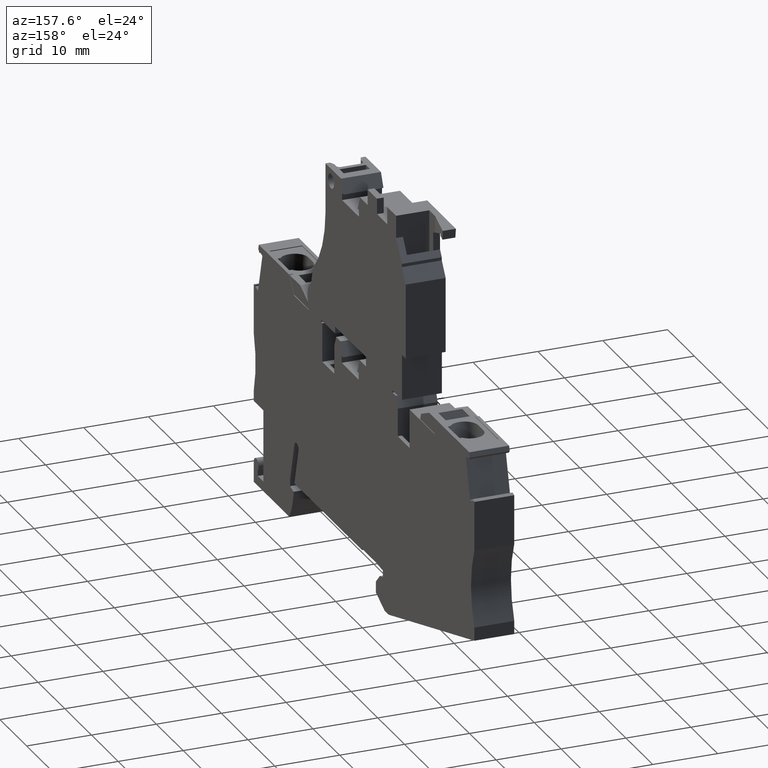
[diagram: clean part render]
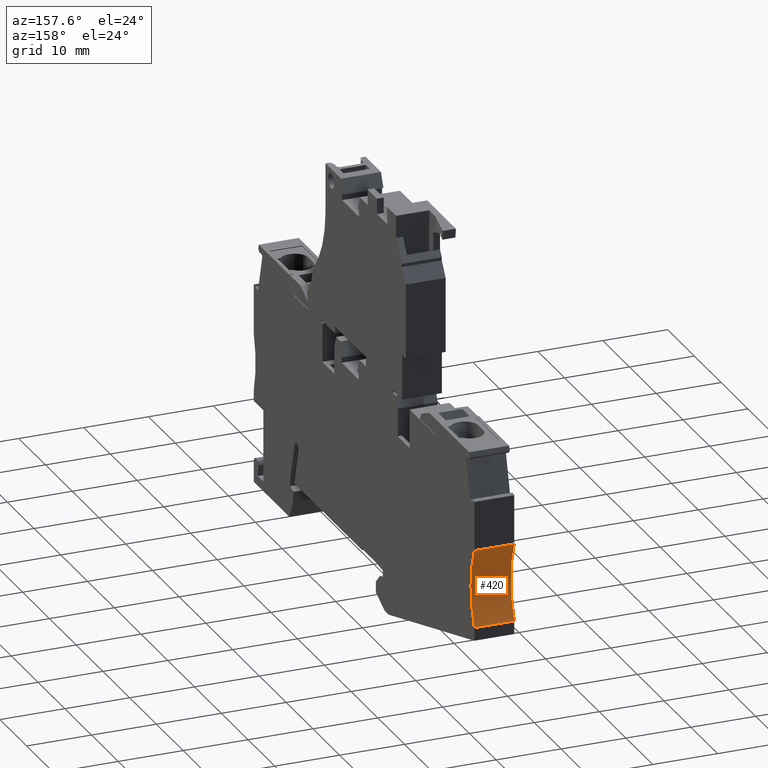
[diagram: same view with one face highlighted and labeled with its STEP entity id]
A machine part, auxiliary view. The second image highlights one B-rep face of the part: STEP entity #420.
In plain terms, the highlighted cylindrical surface (partial cylindrical patch) has radius 15 mm, axis along (1, 0, 0).
Its self-contained STEP definition (entity closure, byte-faithful):
#10=CARTESIAN_POINT('',(99.2466863026297,23.3009706322769,
2.31548633044056E-11));
#20=DIRECTION('',(1.30635874114574E-13,1.60400341780714E-14,1.));
#30=DIRECTION('',(0.992546151641338,0.121869343405017,
-1.31616922552198E-13));
#40=AXIS2_PLACEMENT_3D('',#10,#20,#30);
#50=CYLINDRICAL_SURFACE('',#40,15.);
#60=CARTESIAN_POINT('',(84.8702166293312,27.5808210657417,
-6.02311354609829E-12));
#70=DIRECTION('',(-3.00945698545541E-14,-3.71491183819992E-15,1.));
#80=VECTOR('',#70,1.);
#90=LINE('',#60,#80);
#100=CARTESIAN_POINT('',(84.8702166293315,27.5808210657407,
-5.6500000000433));
#110=VERTEX_POINT('',#100);
#120=CARTESIAN_POINT('',(84.8702166293314,27.5808210657404,
0.499999999956705));
#130=VERTEX_POINT('',#120);
#140=EDGE_CURVE('',#110,#130,#90,.T.);
#150=ORIENTED_EDGE('',*,*,#140,.T.);
#160=CARTESIAN_POINT('',(99.246686302629,23.3009706322768,
-5.6500000000451));
#170=DIRECTION('',(1.30635874114574E-13,1.60400341780714E-14,1.));
#180=DIRECTION('',(0.992546151641338,0.121869343405017,
-1.31616922552198E-13));
#190=AXIS2_PLACEMENT_3D('',#160,#170,#180);
#200=CIRCLE('',#190,15.);
#210=CARTESIAN_POINT('',(86.3326487494333,15.670267252204,
-5.6500000000433));
#220=VERTEX_POINT('',#210);
#230=EDGE_CURVE('',#110,#220,#200,.T.);
#240=ORIENTED_EDGE('',*,*,#230,.F.);
#250=CARTESIAN_POINT('',(86.3326487494341,15.6702672522041,
2.49643208861205E-11));
#260=DIRECTION('',(1.30635874114574E-13,1.60400341780714E-14,1.));
#270=VECTOR('',#260,1.);
#280=LINE('',#250,#270);
#290=CARTESIAN_POINT('',(86.3326487494341,15.6702672522041,
0.499999999956705));
#300=VERTEX_POINT('',#290);
#310=EDGE_CURVE('',#220,#300,#280,.T.);
#320=ORIENTED_EDGE('',*,*,#310,.F.);
#330=CARTESIAN_POINT('',(99.2466863026298,23.3009706322769,
0.499999999954896));
#340=DIRECTION('',(1.30635874114574E-13,1.60400341780714E-14,1.));
#350=DIRECTION('',(0.992546151641338,0.121869343405017,
-1.31616922552198E-13));
#360=AXIS2_PLACEMENT_3D('',#330,#340,#350);
#370=CIRCLE('',#360,15.);
#380=EDGE_CURVE('',#130,#300,#370,.T.);
#390=ORIENTED_EDGE('',*,*,#380,.T.);
#400=EDGE_LOOP('',(#390,#320,#240,#150));
#410=FACE_OUTER_BOUND('',#400,.T.);
#420=ADVANCED_FACE('',(#410),#50,.F.);